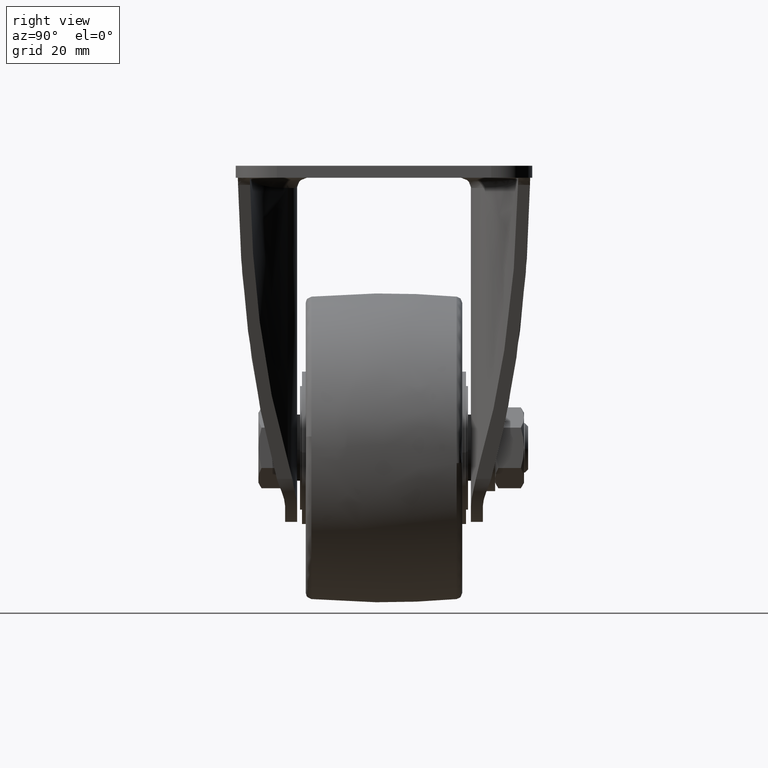
[diagram: clean part render]
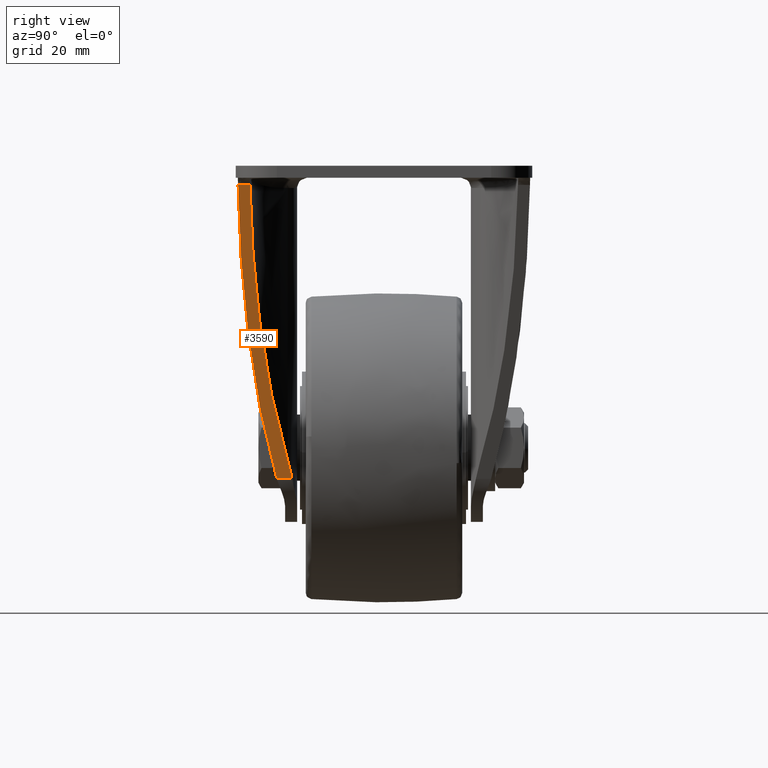
[diagram: same view with one face highlighted and labeled with its STEP entity id]
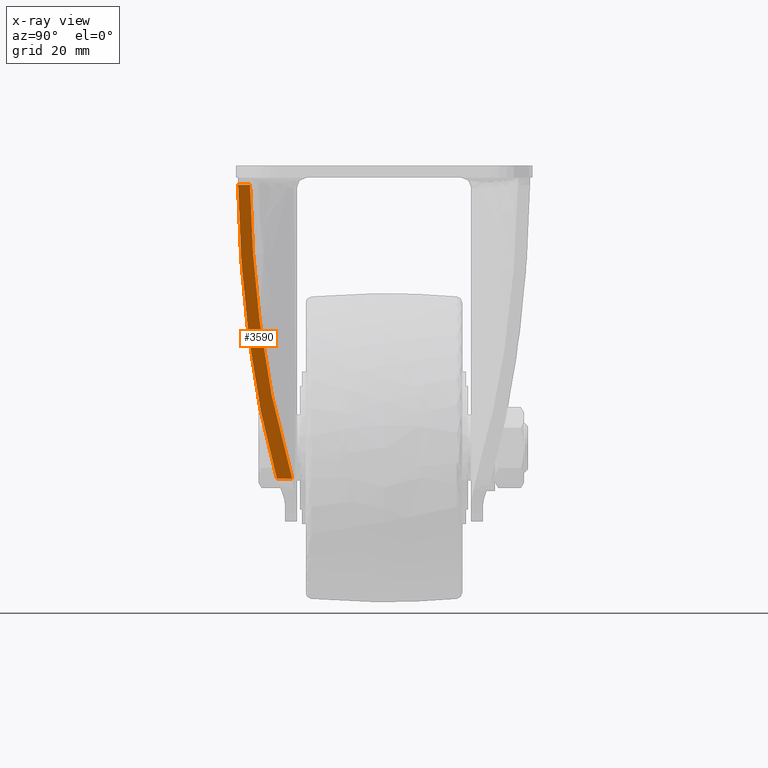
[diagram: x-ray of the same camera — body ghosted, the highlighted face saturated]
A machine part, right view. The second image highlights one B-rep face of the part: STEP entity #3590.
The next image is the same camera in x-ray: the body ghosted, the highlighted face saturated — about 0% of this face is hidden behind the body in this view.
In plain terms, the highlighted face is a freeform B-spline surface patch.
Its self-contained STEP definition (entity closure, byte-faithful):
#3524=CARTESIAN_POINT('',(13.168247553984900,-36.100153254867493,-79.598794054037171));
#3525=CARTESIAN_POINT('',(38.060548271840723,-36.100153254867493,-1.078655750860155));
#3526=CARTESIAN_POINT('',(13.168247553984900,-21.642834544834031,-79.598794054037171));
#3527=CARTESIAN_POINT('',(38.060548271840723,-21.642834544834031,-1.078655750860155));
#3528=B_SPLINE_SURFACE_WITH_KNOTS('',1,1,((#3524,#3526),(#3525,#3527)),.UNSPECIFIED.,.F.,.F.,.U.,(2,2),(2,2),(0.0,82.371346681829920),(0.0,14.457318710033460),.UNSPECIFIED.);
#3529=CARTESIAN_POINT('',(15.730752308236500,-23.383727355105648,-71.515642962983094));
#3530=VERTEX_POINT('',#3529);
#3531=CARTESIAN_POINT('',(36.930108218803547,-32.538766631264700,-4.644509719684261));
#3532=VERTEX_POINT('',#3531);
#3533=CARTESIAN_POINT('',(15.730752308236429,-23.383727355105620,-71.515642962983122));
#3534=CARTESIAN_POINT('',(24.672215064898197,-31.801000500680949,-43.310741365351134));
#3535=CARTESIAN_POINT('',(36.930108218803433,-32.538766631264700,-4.644509719684544));
#3543=(BOUNDED_CURVE()B_SPLINE_CURVE(2,(#3533,#3534,#3535),.UNSPECIFIED.,.F.,.U.)CURVE()GEOMETRIC_REPRESENTATION_ITEM()QUASI_UNIFORM_CURVE()RATIONAL_B_SPLINE_CURVE((1.0,0.940210779729565,1.0))REPRESENTATION_ITEM(''));
#3544=EDGE_CURVE('',#3530,#3532,#3543,.T.);
#3545=ORIENTED_EDGE('',*,*,#3544,.T.);
#3546=CARTESIAN_POINT('',(36.930108218803547,-35.443599907763200,-4.644509719684301));
#3547=VERTEX_POINT('',#3546);
#3548=CARTESIAN_POINT('',(36.930108218803547,-32.538766631264700,-4.644509719684261));
#3549=CARTESIAN_POINT('',(36.930108218803547,-35.443599907763200,-4.644509719684301));
#3550=QUASI_UNIFORM_CURVE('',1,(#3548,#3549),.UNSPECIFIED.,.F.,.U.);
#3551=EDGE_CURVE('',#3532,#3547,#3550,.T.);
#3552=ORIENTED_EDGE('',*,*,#3551,.T.);
#3553=CARTESIAN_POINT('',(14.298687000000040,-26.007770663167300,-76.032942000000006));
#3554=VERTEX_POINT('',#3553);
#3555=CARTESIAN_POINT('',(14.298687000000021,-26.007770663167300,-76.032942000000020));
#3556=CARTESIAN_POINT('',(23.947367755029941,-34.723983033404259,-45.597195786123677));
#3557=CARTESIAN_POINT('',(36.930108218803149,-35.443599907763200,-4.644509719685429));
#3565=(BOUNDED_CURVE()B_SPLINE_CURVE(2,(#3555,#3556,#3557),.UNSPECIFIED.,.F.,.U.)CURVE()GEOMETRIC_REPRESENTATION_ITEM()QUASI_UNIFORM_CURVE()RATIONAL_B_SPLINE_CURVE((1.0,0.942872136315912,1.0))REPRESENTATION_ITEM(''));
#3566=EDGE_CURVE('',#3554,#3547,#3565,.T.);
#3567=ORIENTED_EDGE('',*,*,#3566,.F.);
#3568=CARTESIAN_POINT('',(14.298687000000101,-22.299388244493549,-76.032942000000006));
#3569=VERTEX_POINT('',#3568);
#3570=CARTESIAN_POINT('',(14.298687000000101,-22.299388244493549,-76.032942000000006));
#3571=CARTESIAN_POINT('',(14.298687000000040,-26.007770663167300,-76.032942000000006));
#3572=QUASI_UNIFORM_CURVE('',1,(#3570,#3571),.UNSPECIFIED.,.F.,.U.);
#3573=EDGE_CURVE('',#3569,#3554,#3572,.T.);
#3574=ORIENTED_EDGE('',*,*,#3573,.F.);
#3575=CARTESIAN_POINT('',(15.730752308236500,-23.383727355105659,-71.515642962983094));
#3576=CARTESIAN_POINT('',(15.073023247360597,-22.764557392444853,-73.590379943359878));
#3577=CARTESIAN_POINT('',(14.298687000000090,-22.299388244493571,-76.032941999999991));
#3585=(BOUNDED_CURVE()B_SPLINE_CURVE(2,(#3575,#3576,#3577),.UNSPECIFIED.,.F.,.U.)CURVE()GEOMETRIC_REPRESENTATION_ITEM()QUASI_UNIFORM_CURVE()RATIONAL_B_SPLINE_CURVE((1.0,0.994267507840599,1.0))REPRESENTATION_ITEM(''));
#3586=EDGE_CURVE('',#3530,#3569,#3585,.T.);
#3587=ORIENTED_EDGE('',*,*,#3586,.F.);
#3588=EDGE_LOOP('',(#3545,#3552,#3567,#3574,#3587));
#3589=FACE_OUTER_BOUND('',#3588,.T.);
#3590=ADVANCED_FACE('',(#3589),#3528,.F.);